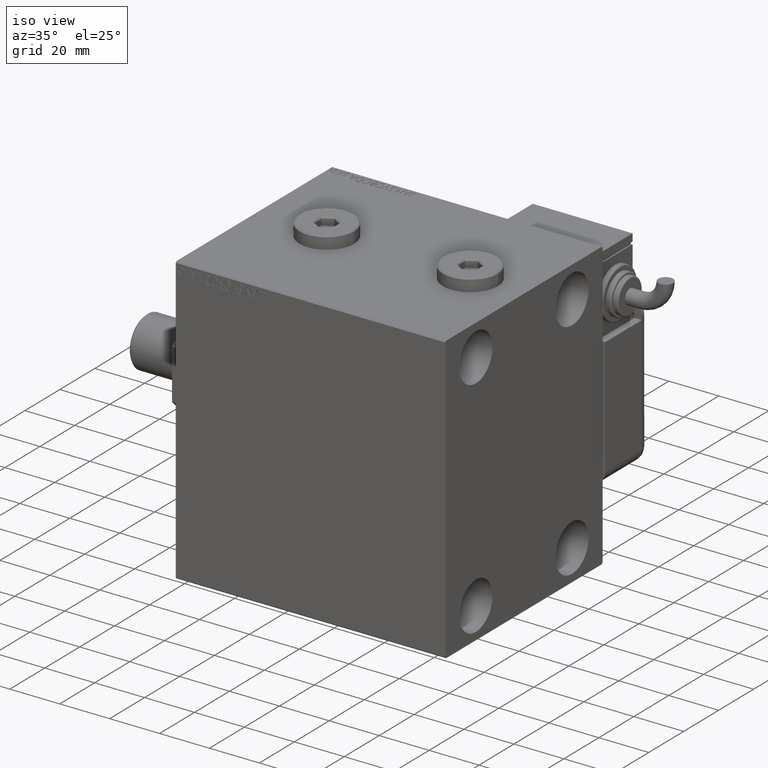
[diagram: clean part render]
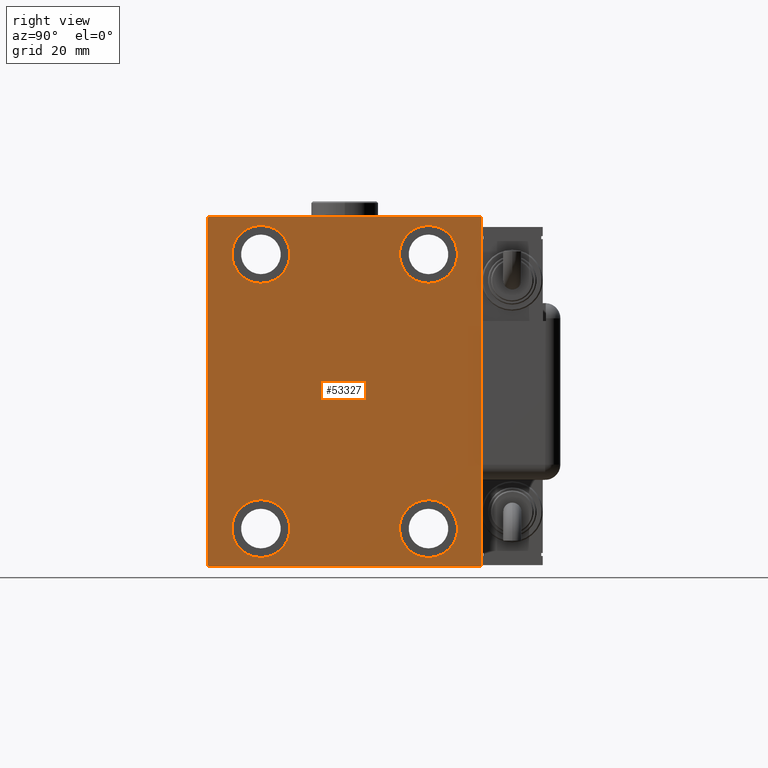
[diagram: tour spotlight — one face highlighted and labeled with its STEP entity id]
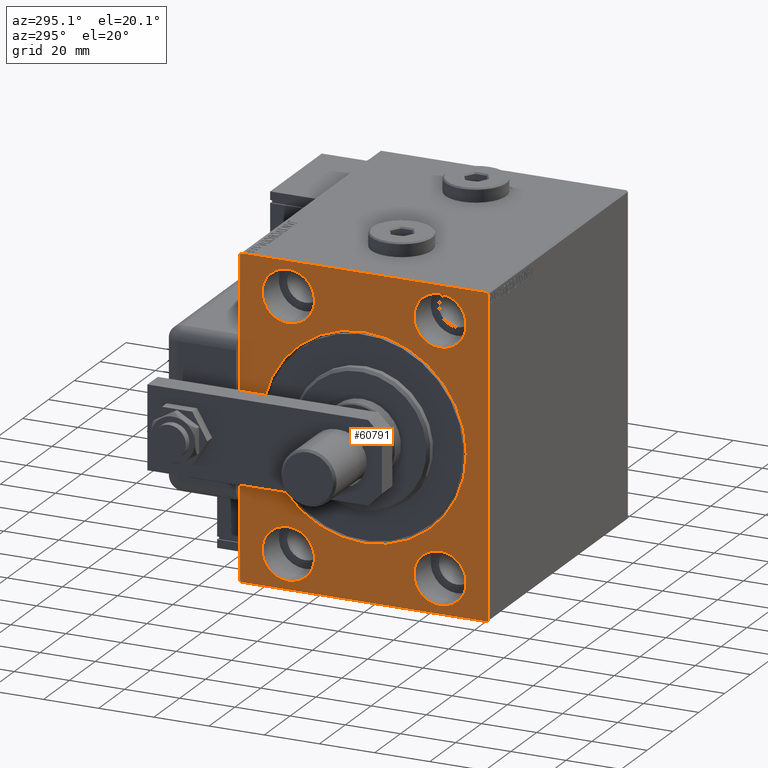
[diagram: tour spotlight — one face highlighted and labeled with its STEP entity id]
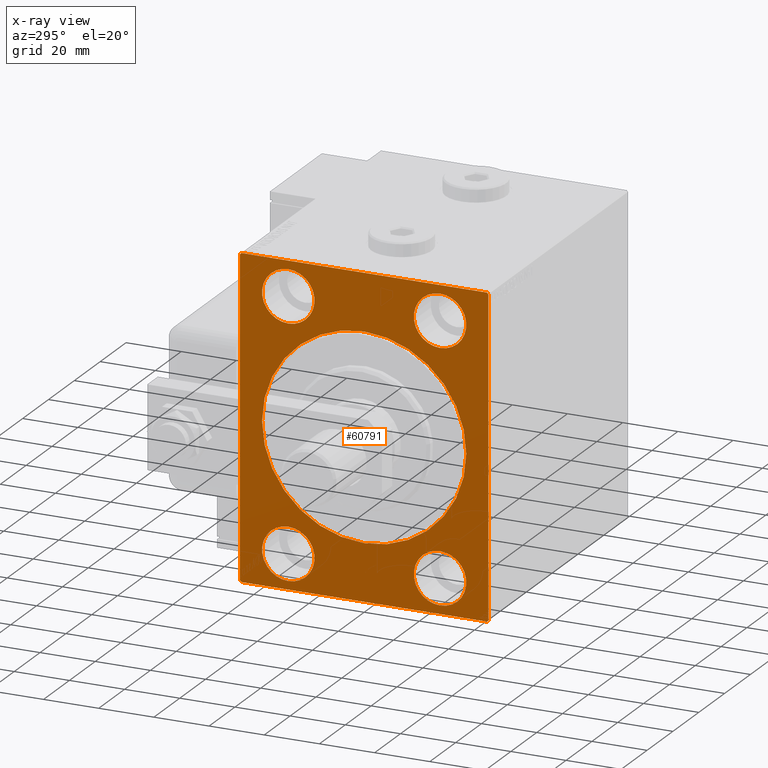
[diagram: x-ray of the same camera — body ghosted, this tour face saturated]
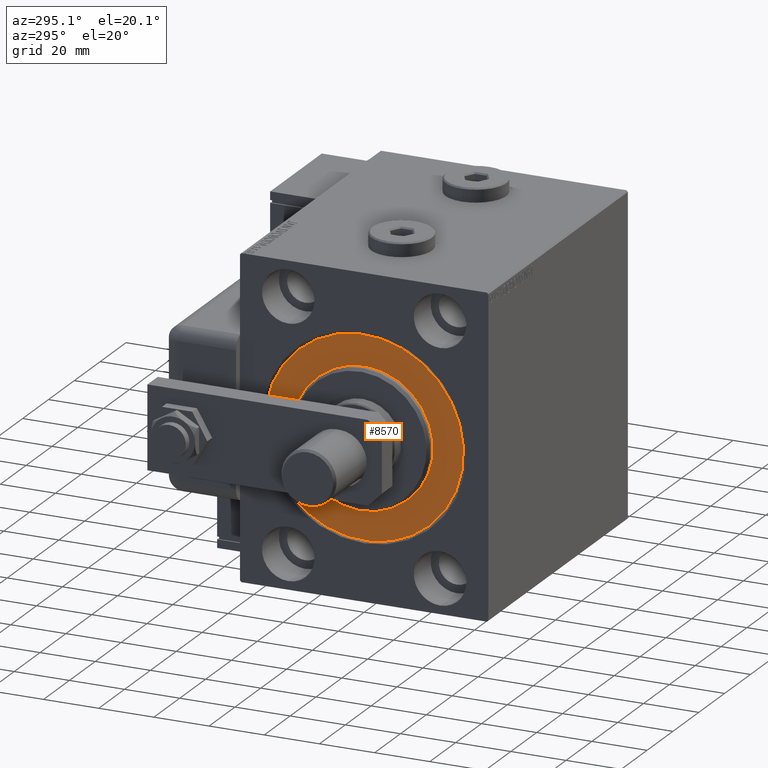
[diagram: tour spotlight — one face highlighted and labeled with its STEP entity id]
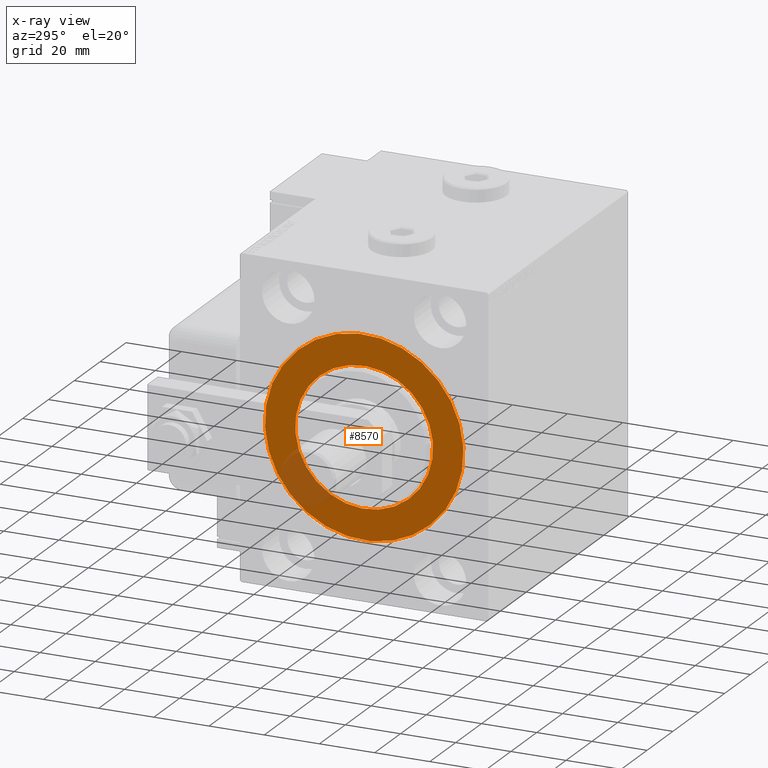
[diagram: x-ray of the same camera — body ghosted, this tour face saturated]
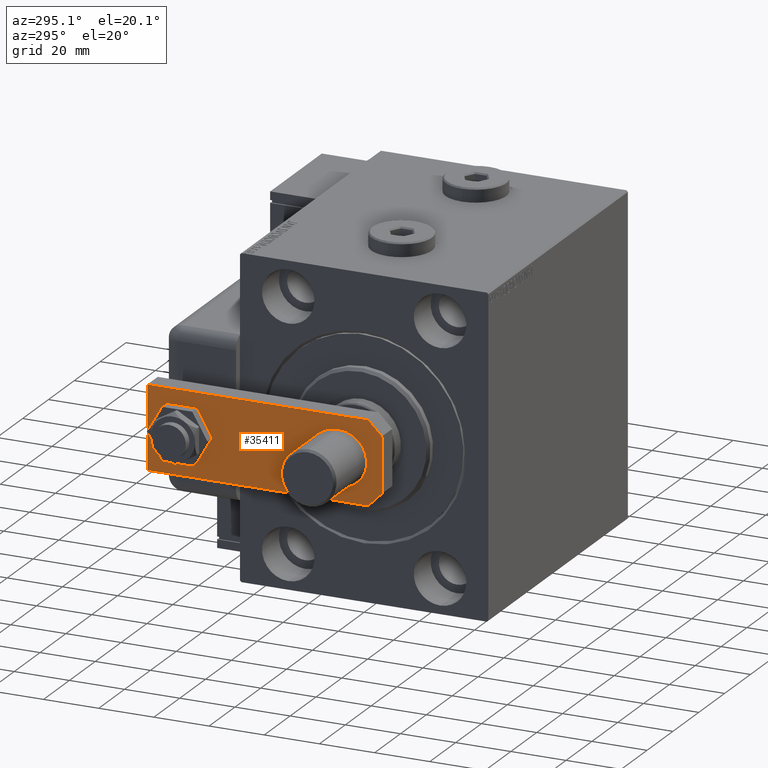
[diagram: tour spotlight — one face highlighted and labeled with its STEP entity id]
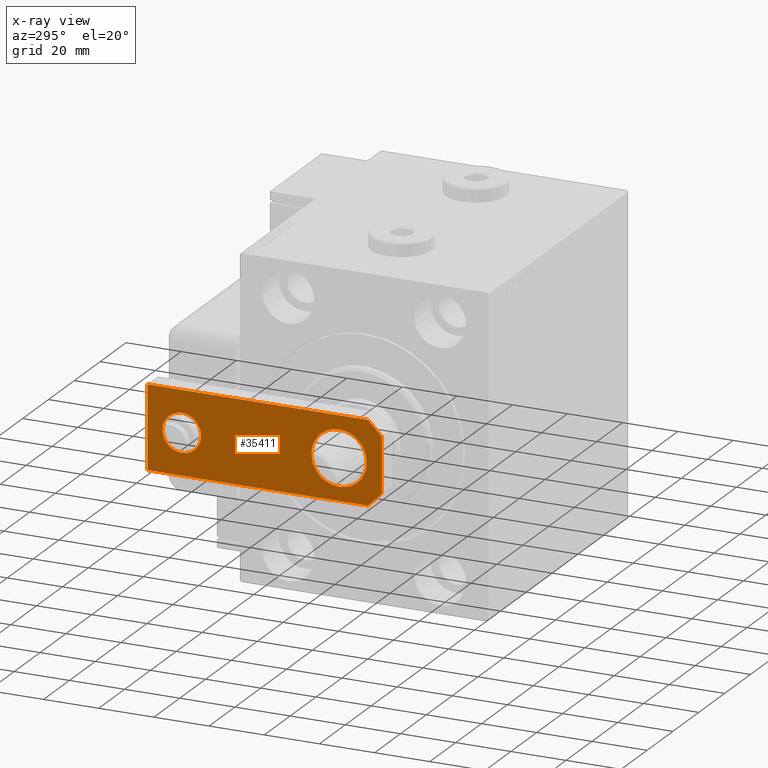
[diagram: x-ray of the same camera — body ghosted, this tour face saturated]
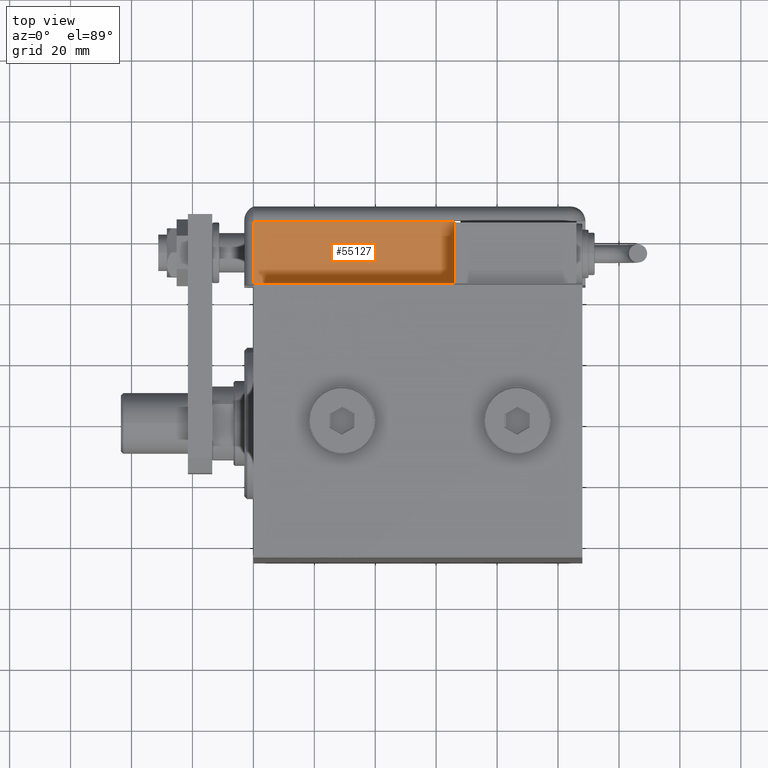
[diagram: tour spotlight — one face highlighted and labeled with its STEP entity id]
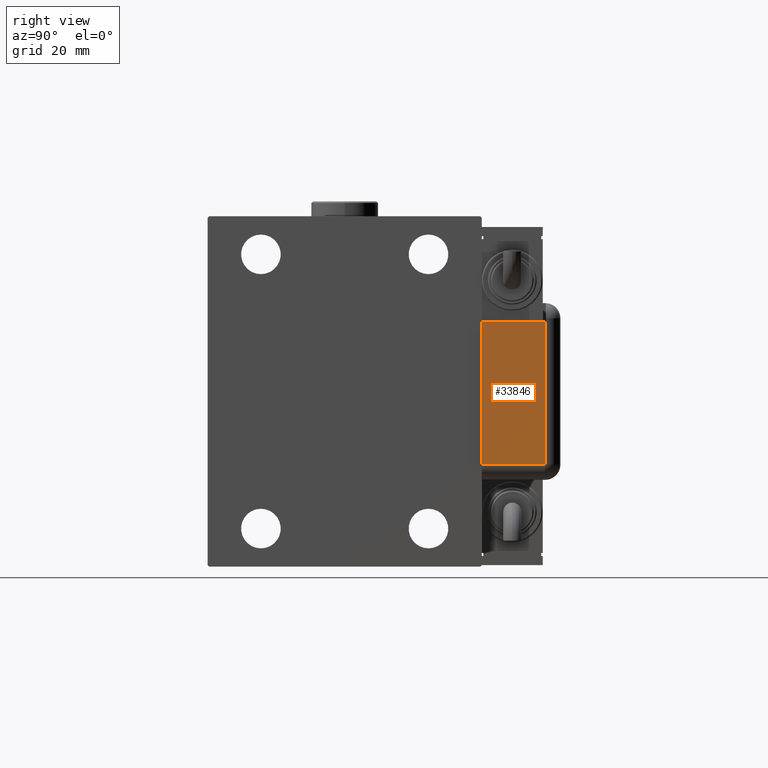
[diagram: tour spotlight — one face highlighted and labeled with its STEP entity id]
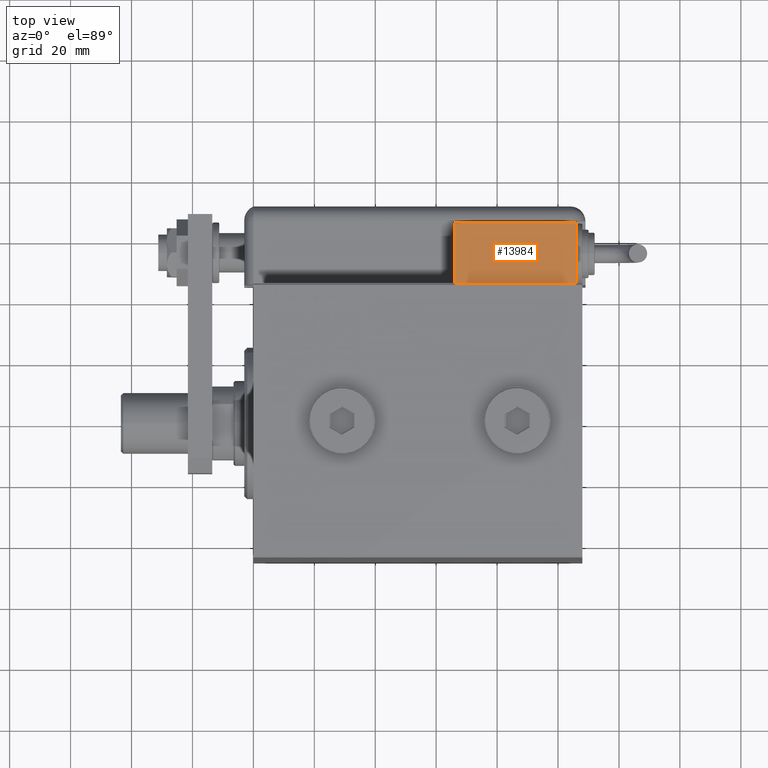
[diagram: tour spotlight — one face highlighted and labeled with its STEP entity id]
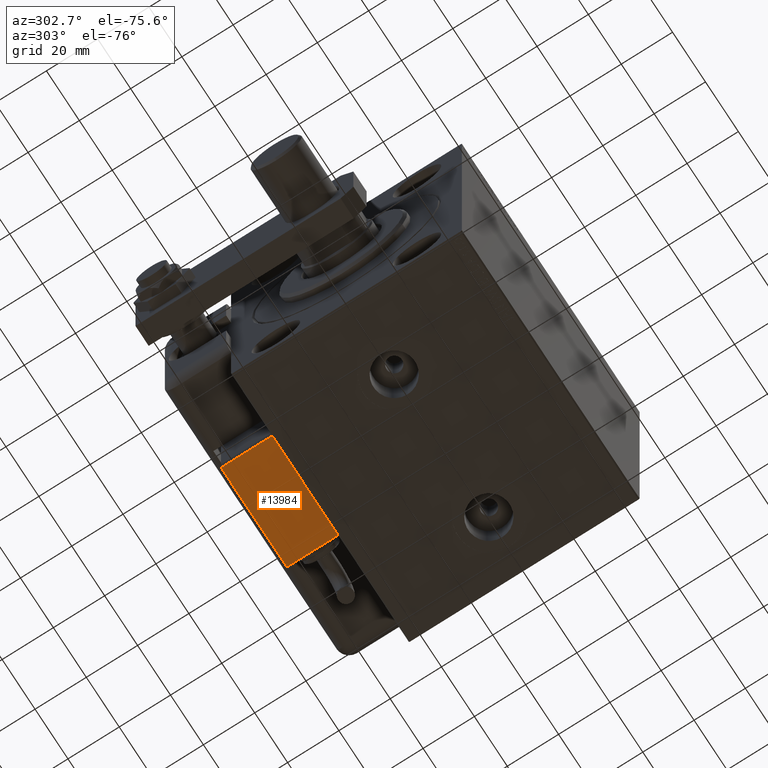
[diagram: tour spotlight — one face highlighted and labeled with its STEP entity id]
A machine part: a face-by-face anatomy tour. The part has 1317 B-rep faces; the first image is the clean iso view, then the 8 largest visible faces are spotlighted one at a time (largest first), each with its STEP entity span.

Face 1 — right view, entity #53327. In plain terms, the highlighted planar face has unit normal (1, 0, 0).
Definition (entity closure, byte-faithful):
#275 = VERTEX_POINT ( 'NONE', #26012 ) ;
#323 = CIRCLE ( 'NONE', #27135, 9.500000000000001776 ) ;
#413 = EDGE_CURVE ( 'NONE', #275, #40038, #42336, .T. ) ;
#530 = VERTEX_POINT ( 'NONE', #21273 ) ;
#584 = VERTEX_POINT ( 'NONE', #45841 ) ;
#848 = DIRECTION ( 'NONE',  ( 0.000000000000000000, 0.000000000000000000, -1.000000000000000000 ) ) ;
#1131 = DIRECTION ( 'NONE',  ( -1.000000000000000000, -0.000000000000000000, -0.000000000000000000 ) ) ;
#1400 = EDGE_CURVE ( 'NONE', #5966, #45163, #8564, .T. ) ;
#1457 = ORIENTED_EDGE ( 'NONE', *, *, #60066, .T. ) ;
#2120 = DIRECTION ( 'NONE',  ( 0.000000000000000000, 0.000000000000000000, 1.000000000000000000 ) ) ;
#2730 = ORIENTED_EDGE ( 'NONE', *, *, #1400, .T. ) ;
#2903 = DIRECTION ( 'NONE',  ( 0.000000000000000000, 0.000000000000000000, 1.000000000000000000 ) ) ;
#3812 = ORIENTED_EDGE ( 'NONE', *, *, #41590, .T. ) ;
#3994 = VECTOR ( 'NONE', #44060, 1000.000000000000000 ) ;
#4144 = CARTESIAN_POINT ( 'NONE',  ( 108.0000000000000000, -51.00000000000000000, 51.00000000000000000 ) ) ;
#4304 = CARTESIAN_POINT ( 'NONE',  ( 108.0000000000000000, -45.00000000000000000, 56.99999999999999289 ) ) ;
#4646 = VERTEX_POINT ( 'NONE', #54716 ) ;
#5336 = ORIENTED_EDGE ( 'NONE', *, *, #53562, .T. ) ;
#5700 = EDGE_CURVE ( 'NONE', #45163, #5966, #41405, .T. ) ;
#5852 = FACE_OUTER_BOUND ( 'NONE', #51257, .T. ) ;
#5966 = VERTEX_POINT ( 'NONE', #25986 ) ;
#6130 = ORIENTED_EDGE ( 'NONE', *, *, #19647, .T. ) ;
#6154 = VECTOR ( 'NONE', #848, 1000.000000000000000 ) ;
#6540 = DIRECTION ( 'NONE',  ( -0.000000000000000000, -0.7071067811865474617, 0.7071067811865474617 ) ) ;
#7995 = VECTOR ( 'NONE', #6540, 1000.000000000000114 ) ;
#8564 = CIRCLE ( 'NONE', #48347, 9.500000000000001776 ) ;
#9291 = EDGE_CURVE ( 'NONE', #40038, #275, #40561, .T. ) ;
#10167 = VERTEX_POINT ( 'NONE', #14671 ) ;
#10281 = CARTESIAN_POINT ( 'NONE',  ( 108.0000000000000000, 27.50000000000001066, 54.50000000000000711 ) ) ;
#10830 = FACE_BOUND ( 'NONE', #47980, .T. ) ;
#10977 = VECTOR ( 'NONE', #53355, 1000.000000000000000 ) ;
#11144 = CARTESIAN_POINT ( 'NONE',  ( 108.0000000000000000, 27.49999999999998934, -35.49999999999998579 ) ) ;
#11342 = ORIENTED_EDGE ( 'NONE', *, *, #52702, .T. ) ;
#11369 = DIRECTION ( 'NONE',  ( -0.000000000000000000, 0.7071067811865474617, 0.7071067811865474617 ) ) ;
#11445 = DIRECTION ( 'NONE',  ( -1.000000000000000000, -0.000000000000000000, -0.000000000000000000 ) ) ;
#11593 = AXIS2_PLACEMENT_3D ( 'NONE', #16130, #11445, #2120 ) ;
#11740 = CARTESIAN_POINT ( 'NONE',  ( 108.0000000000000000, 0.000000000000000000, 0.000000000000000000 ) ) ;
#11924 = ORIENTED_EDGE ( 'NONE', *, *, #5700, .T. ) ;
#13656 = LINE ( 'NONE', #32629, #22664 ) ;
#13722 = AXIS2_PLACEMENT_3D ( 'NONE', #43762, #1131, #20106 ) ;
#14030 = CARTESIAN_POINT ( 'NONE',  ( 108.0000000000000000, -27.49999999999998934, 35.50000000000000711 ) ) ;
#14155 = CARTESIAN_POINT ( 'NONE',  ( 108.0000000000000000, -27.50000000000000000, -44.99999999999998579 ) ) ;
#14389 = EDGE_CURVE ( 'NONE', #10167, #50685, #15388, .T. ) ;
#14516 = VERTEX_POINT ( 'NONE', #59243 ) ;
#14671 = CARTESIAN_POINT ( 'NONE',  ( 108.0000000000000000, 44.50000000000002842, 57.50000000000000711 ) ) ;
#15388 = LINE ( 'NONE', #39635, #10977 ) ;
#16130 = CARTESIAN_POINT ( 'NONE',  ( 108.0000000000000000, 27.49999999999998934, -44.99999999999998579 ) ) ;
#17079 = CIRCLE ( 'NONE', #52848, 9.500000000000001776 ) ;
#18291 = DIRECTION ( 'NONE',  ( -1.000000000000000000, -0.000000000000000000, -0.000000000000000000 ) ) ;
#18451 = DIRECTION ( 'NONE',  ( 0.000000000000000000, -0.7071067811865474617, -0.7071067811865474617 ) ) ;
#18664 = ORIENTED_EDGE ( 'NONE', *, *, #413, .T. ) ;
#19647 = EDGE_CURVE ( 'NONE', #56119, #584, #13656, .T. ) ;
#20106 = DIRECTION ( 'NONE',  ( 0.000000000000000000, 0.000000000000000000, 1.000000000000000000 ) ) ;
#20695 = CARTESIAN_POINT ( 'NONE',  ( 108.0000000000000000, 45.00000000000001421, -57.50000000000000711 ) ) ;
#21273 = CARTESIAN_POINT ( 'NONE',  ( 108.0000000000000000, 45.00000000000001421, -57.00000000000003553 ) ) ;
#21600 = CARTESIAN_POINT ( 'NONE',  ( 108.0000000000000000, -27.49999999999998934, 45.00000000000000711 ) ) ;
#22560 = EDGE_LOOP ( 'NONE', ( #57351, #57357 ) ) ;
#22664 = VECTOR ( 'NONE', #53806, 1000.000000000000114 ) ;
#22889 = EDGE_CURVE ( 'NONE', #50685, #58955, #46781, .T. ) ;
#23052 = DIRECTION ( 'NONE',  ( -1.000000000000000000, -0.000000000000000000, -0.000000000000000000 ) ) ;
#23563 = DIRECTION ( 'NONE',  ( 0.000000000000000000, 0.000000000000000000, 1.000000000000000000 ) ) ;
#23564 = LINE ( 'NONE', #24804, #6154 ) ;
#24434 = LINE ( 'NONE', #20695, #3994 ) ;
#24804 = CARTESIAN_POINT ( 'NONE',  ( 108.0000000000000000, -45.00000000000000000, 57.49999999999999289 ) ) ;
#24814 = VECTOR ( 'NONE', #18451, 1000.000000000000114 ) ;
#25179 = EDGE_LOOP ( 'NONE', ( #2730, #11924 ) ) ;
#25435 = FACE_BOUND ( 'NONE', #25179, .T. ) ;
#25986 = CARTESIAN_POINT ( 'NONE',  ( 108.0000000000000000, 27.49999999999998934, -54.49999999999998579 ) ) ;
#26012 = CARTESIAN_POINT ( 'NONE',  ( 108.0000000000000000, -27.50000000000000000, -35.49999999999998579 ) ) ;
#27135 = AXIS2_PLACEMENT_3D ( 'NONE', #21600, #23052, #39992 ) ;
#27308 = DIRECTION ( 'NONE',  ( 0.000000000000000000, 1.000000000000000000, 0.000000000000000000 ) ) ;
#27844 = CIRCLE ( 'NONE', #45756, 9.500000000000001776 ) ;
#28431 = AXIS2_PLACEMENT_3D ( 'NONE', #14155, #39028, #53058 ) ;
#29794 = CARTESIAN_POINT ( 'NONE',  ( 108.0000000000000000, -45.00000000000000000, -57.00000000000003553 ) ) ;
#29819 = CIRCLE ( 'NONE', #58679, 9.500000000000001776 ) ;
#29941 = VECTOR ( 'NONE', #11369, 1000.000000000000114 ) ;
#30179 = DIRECTION ( 'NONE',  ( 0.000000000000000000, 0.000000000000000000, 1.000000000000000000 ) ) ;
#30189 = CARTESIAN_POINT ( 'NONE',  ( 108.0000000000000000, 51.00000000000001421, 51.00000000000001421 ) ) ;
#30950 = EDGE_CURVE ( 'NONE', #58955, #56119, #23564, .T. ) ;
#31718 = EDGE_CURVE ( 'NONE', #34750, #42005, #17079, .T. ) ;
#31770 = ORIENTED_EDGE ( 'NONE', *, *, #57639, .T. ) ;
#31945 = ORIENTED_EDGE ( 'NONE', *, *, #22889, .T. ) ;
#32300 = DIRECTION ( 'NONE',  ( -1.000000000000000000, -0.000000000000000000, -0.000000000000000000 ) ) ;
#32629 = CARTESIAN_POINT ( 'NONE',  ( 108.0000000000000000, -51.00000000000001421, -51.00000000000001421 ) ) ;
#33266 = ORIENTED_EDGE ( 'NONE', *, *, #14389, .T. ) ;
#33842 = CARTESIAN_POINT ( 'NONE',  ( 108.0000000000000000, -27.50000000000000000, -54.49999999999998579 ) ) ;
#34098 = LINE ( 'NONE', #38758, #29941 ) ;
#34650 = EDGE_CURVE ( 'NONE', #42005, #34750, #323, .T. ) ;
#34750 = VERTEX_POINT ( 'NONE', #14030 ) ;
#36950 = CARTESIAN_POINT ( 'NONE',  ( 108.0000000000000000, -45.00000000000000000, -57.50000000000000711 ) ) ;
#38758 = CARTESIAN_POINT ( 'NONE',  ( 108.0000000000000000, 51.00000000000001421, -51.00000000000001421 ) ) ;
#38833 = FACE_BOUND ( 'NONE', #22560, .T. ) ;
#39028 = DIRECTION ( 'NONE',  ( -1.000000000000000000, -0.000000000000000000, -0.000000000000000000 ) ) ;
#39145 = FACE_BOUND ( 'NONE', #51339, .T. ) ;
#39513 = DIRECTION ( 'NONE',  ( -1.000000000000000000, -0.000000000000000000, -0.000000000000000000 ) ) ;
#39635 = CARTESIAN_POINT ( 'NONE',  ( 108.0000000000000000, 45.00000000000000000, 57.50000000000000711 ) ) ;
#39841 = LINE ( 'NONE', #30189, #7995 ) ;
#39992 = DIRECTION ( 'NONE',  ( 0.000000000000000000, 0.000000000000000000, 1.000000000000000000 ) ) ;
#40038 = VERTEX_POINT ( 'NONE', #33842 ) ;
#40561 = CIRCLE ( 'NONE', #13722, 9.500000000000001776 ) ;
#40875 = DIRECTION ( 'NONE',  ( -1.000000000000000000, -0.000000000000000000, -0.000000000000000000 ) ) ;
#41405 = CIRCLE ( 'NONE', #11593, 9.500000000000001776 ) ;
#41590 = EDGE_CURVE ( 'NONE', #584, #14516, #45993, .T. ) ;
#42005 = VERTEX_POINT ( 'NONE', #60247 ) ;
#42336 = CIRCLE ( 'NONE', #28431, 9.500000000000001776 ) ;
#42469 = ORIENTED_EDGE ( 'NONE', *, *, #53070, .T. ) ;
#43205 = VECTOR ( 'NONE', #27308, 1000.000000000000000 ) ;
#43704 = CARTESIAN_POINT ( 'NONE',  ( 108.0000000000000000, 45.00000000000000000, 57.00000000000000711 ) ) ;
#43762 = CARTESIAN_POINT ( 'NONE',  ( 108.0000000000000000, -27.50000000000000000, -44.99999999999998579 ) ) ;
#44060 = DIRECTION ( 'NONE',  ( 0.000000000000000000, -1.206764157201257045E-16, 1.000000000000000000 ) ) ;
#44429 = DIRECTION ( 'NONE',  ( 0.000000000000000000, 0.000000000000000000, -1.000000000000000000 ) ) ;
#44500 = CARTESIAN_POINT ( 'NONE',  ( 108.0000000000000000, 27.50000000000001066, 45.00000000000000711 ) ) ;
#44906 = VERTEX_POINT ( 'NONE', #10281 ) ;
#45163 = VERTEX_POINT ( 'NONE', #11144 ) ;
#45756 = AXIS2_PLACEMENT_3D ( 'NONE', #44500, #39513, #30179 ) ;
#45841 = CARTESIAN_POINT ( 'NONE',  ( 108.0000000000000000, -44.50000000000002842, -57.50000000000000711 ) ) ;
#45993 = LINE ( 'NONE', #36950, #43205 ) ;
#46621 = CARTESIAN_POINT ( 'NONE',  ( 108.0000000000000000, -27.49999999999998934, 45.00000000000000711 ) ) ;
#46781 = LINE ( 'NONE', #4144, #24814 ) ;
#46933 = DIRECTION ( 'NONE',  ( 0.000000000000000000, 0.000000000000000000, 1.000000000000000000 ) ) ;
#47980 = EDGE_LOOP ( 'NONE', ( #60154, #18664 ) ) ;
#48347 = AXIS2_PLACEMENT_3D ( 'NONE', #56435, #40875, #2903 ) ;
#48812 = PLANE ( 'NONE',  #52747 ) ;
#49981 = CARTESIAN_POINT ( 'NONE',  ( 108.0000000000000000, -44.49999999999997158, 57.49999999999999289 ) ) ;
#50685 = VERTEX_POINT ( 'NONE', #49981 ) ;
#50985 = VERTEX_POINT ( 'NONE', #43704 ) ;
#51257 = EDGE_LOOP ( 'NONE', ( #33266, #31945, #61287, #6130, #3812, #1457, #5336, #31770 ) ) ;
#51339 = EDGE_LOOP ( 'NONE', ( #11342, #42469 ) ) ;
#52518 = CARTESIAN_POINT ( 'NONE',  ( 108.0000000000000000, 27.50000000000001066, 45.00000000000000711 ) ) ;
#52702 = EDGE_CURVE ( 'NONE', #4646, #44906, #29819, .T. ) ;
#52747 = AXIS2_PLACEMENT_3D ( 'NONE', #11740, #53801, #44429 ) ;
#52848 = AXIS2_PLACEMENT_3D ( 'NONE', #46621, #32300, #46933 ) ;
#53058 = DIRECTION ( 'NONE',  ( 0.000000000000000000, 0.000000000000000000, 1.000000000000000000 ) ) ;
#53070 = EDGE_CURVE ( 'NONE', #44906, #4646, #27844, .T. ) ;
#53327 = ADVANCED_FACE ( 'NONE', ( #25435, #38833, #39145, #10830, #5852 ), #48812, .T. ) ;
#53355 = DIRECTION ( 'NONE',  ( 0.000000000000000000, -1.000000000000000000, -1.541976423090495387E-16 ) ) ;
#53562 = EDGE_CURVE ( 'NONE', #530, #50985, #24434, .T. ) ;
#53801 = DIRECTION ( 'NONE',  ( 1.000000000000000000, 0.000000000000000000, 0.000000000000000000 ) ) ;
#53806 = DIRECTION ( 'NONE',  ( -0.000000000000000000, 0.7071067811865474617, -0.7071067811865474617 ) ) ;
#54716 = CARTESIAN_POINT ( 'NONE',  ( 108.0000000000000000, 27.50000000000001066, 35.50000000000000711 ) ) ;
#56119 = VERTEX_POINT ( 'NONE', #29794 ) ;
#56435 = CARTESIAN_POINT ( 'NONE',  ( 108.0000000000000000, 27.49999999999998934, -44.99999999999998579 ) ) ;
#57351 = ORIENTED_EDGE ( 'NONE', *, *, #31718, .T. ) ;
#57357 = ORIENTED_EDGE ( 'NONE', *, *, #34650, .T. ) ;
#57639 = EDGE_CURVE ( 'NONE', #50985, #10167, #39841, .T. ) ;
#58679 = AXIS2_PLACEMENT_3D ( 'NONE', #52518, #18291, #23563 ) ;
#58955 = VERTEX_POINT ( 'NONE', #4304 ) ;
#59243 = CARTESIAN_POINT ( 'NONE',  ( 108.0000000000000000, 44.50000000000001421, -57.50000000000000711 ) ) ;
#60066 = EDGE_CURVE ( 'NONE', #14516, #530, #34098, .T. ) ;
#60154 = ORIENTED_EDGE ( 'NONE', *, *, #9291, .T. ) ;
#60247 = CARTESIAN_POINT ( 'NONE',  ( 108.0000000000000000, -27.49999999999998934, 54.50000000000000711 ) ) ;
#61287 = ORIENTED_EDGE ( 'NONE', *, *, #30950, .T. ) ;

Face 2 — auxiliary view, entity #60791. An x-ray twin of the same camera follows (body ghosted, this face saturated) — the face is partly hidden behind the body. In plain terms, the highlighted planar face has unit normal (1, 0, 0).
Definition (entity closure, byte-faithful):
#1008 = VECTOR ( 'NONE', #37058, 1000.000000000000000 ) ;
#1189 = DIRECTION ( 'NONE',  ( -0.000000000000000000, -0.7071067811865474617, 0.7071067811865474617 ) ) ;
#1598 = DIRECTION ( 'NONE',  ( 0.000000000000000000, -1.206764157201257045E-16, 1.000000000000000000 ) ) ;
#2119 = CIRCLE ( 'NONE', #56823, 9.500000000000001776 ) ;
#3154 = CARTESIAN_POINT ( 'NONE',  ( 0.000000000000000000, 27.49999999999998934, -35.49999999999998579 ) ) ;
#3155 = EDGE_CURVE ( 'NONE', #8291, #38094, #40706, .T. ) ;
#3567 = EDGE_CURVE ( 'NONE', #33907, #7918, #49463, .T. ) ;
#3576 = EDGE_CURVE ( 'NONE', #21480, #38094, #52972, .T. ) ;
#4360 = CIRCLE ( 'NONE', #18260, 37.00000000000003553 ) ;
#5014 = VECTOR ( 'NONE', #18421, 1000.000000000000000 ) ;
#5233 = LINE ( 'NONE', #39442, #39649 ) ;
#5578 = VERTEX_POINT ( 'NONE', #24223 ) ;
#7044 = CARTESIAN_POINT ( 'NONE',  ( 0.000000000000000000, -27.49999999999998934, 45.00000000000000711 ) ) ;
#7187 = CARTESIAN_POINT ( 'NONE',  ( 0.000000000000000000, 27.49999999999998934, -44.99999999999998579 ) ) ;
#7918 = VERTEX_POINT ( 'NONE', #32774 ) ;
#8291 = VERTEX_POINT ( 'NONE', #54109 ) ;
#8541 = DIRECTION ( 'NONE',  ( 0.000000000000000000, 1.000000000000000000, 0.000000000000000000 ) ) ;
#8844 = VECTOR ( 'NONE', #33765, 1000.000000000000114 ) ;
#9692 = LINE ( 'NONE', #37701, #5014 ) ;
#9873 = FACE_BOUND ( 'NONE', #47886, .T. ) ;
#10013 = DIRECTION ( 'NONE',  ( -1.000000000000000000, 0.000000000000000000, 0.000000000000000000 ) ) ;
#10180 = FACE_BOUND ( 'NONE', #22912, .T. ) ;
#10319 = CARTESIAN_POINT ( 'NONE',  ( 0.000000000000000000, 45.00000000000001421, -57.50000000000000711 ) ) ;
#10376 = CARTESIAN_POINT ( 'NONE',  ( 0.000000000000000000, -27.49999999999998934, 45.00000000000000711 ) ) ;
#11443 = EDGE_CURVE ( 'NONE', #59419, #60370, #15837, .T. ) ;
#11717 = DIRECTION ( 'NONE',  ( 0.000000000000000000, 0.000000000000000000, -1.000000000000000000 ) ) ;
#11782 = CARTESIAN_POINT ( 'NONE',  ( 0.000000000000000000, 27.50000000000001066, 45.00000000000000711 ) ) ;
#12092 = CARTESIAN_POINT ( 'NONE',  ( 0.000000000000000000, 0.000000000000000000, 0.000000000000000000 ) ) ;
#12188 = CARTESIAN_POINT ( 'NONE',  ( 0.000000000000000000, 4.531193156845210737E-15, -37.00000000000003553 ) ) ;
#12955 = CARTESIAN_POINT ( 'NONE',  ( 0.000000000000000000, 0.000000000000000000, 0.000000000000000000 ) ) ;
#13120 = LINE ( 'NONE', #18093, #1008 ) ;
#13372 = DIRECTION ( 'NONE',  ( -1.000000000000000000, 0.000000000000000000, 0.000000000000000000 ) ) ;
#13588 = CARTESIAN_POINT ( 'NONE',  ( 0.000000000000000000, -45.00000000000000000, -57.00000000000003553 ) ) ;
#13796 = CARTESIAN_POINT ( 'NONE',  ( 0.000000000000000000, 44.50000000000001421, -57.50000000000000711 ) ) ;
#13852 = VERTEX_POINT ( 'NONE', #45744 ) ;
#13865 = CIRCLE ( 'NONE', #30741, 9.500000000000001776 ) ;
#13990 = EDGE_CURVE ( 'NONE', #26374, #46876, #18885, .T. ) ;
#14536 = EDGE_CURVE ( 'NONE', #5578, #28853, #9692, .T. ) ;
#14859 = FACE_BOUND ( 'NONE', #20430, .T. ) ;
#15837 = CIRCLE ( 'NONE', #31711, 37.00000000000003553 ) ;
#16844 = CARTESIAN_POINT ( 'NONE',  ( 0.000000000000000000, -27.50000000000000000, -44.99999999999998579 ) ) ;
#16868 = CARTESIAN_POINT ( 'NONE',  ( 0.000000000000000000, -27.49999999999998934, 35.50000000000000711 ) ) ;
#17061 = DIRECTION ( 'NONE',  ( -0.000000000000000000, 0.7071067811865474617, -0.7071067811865474617 ) ) ;
#17135 = DIRECTION ( 'NONE',  ( -1.000000000000000000, 0.000000000000000000, 0.000000000000000000 ) ) ;
#18093 = CARTESIAN_POINT ( 'NONE',  ( 0.000000000000000000, 45.00000000000000000, 57.50000000000000711 ) ) ;
#18260 = AXIS2_PLACEMENT_3D ( 'NONE', #12955, #60259, #55915 ) ;
#18421 = DIRECTION ( 'NONE',  ( 0.000000000000000000, 0.000000000000000000, -1.000000000000000000 ) ) ;
#18695 = CIRCLE ( 'NONE', #41545, 9.500000000000001776 ) ;
#18885 = CIRCLE ( 'NONE', #28838, 9.500000000000001776 ) ;
#20430 = EDGE_LOOP ( 'NONE', ( #57278, #21706 ) ) ;
#21225 = EDGE_CURVE ( 'NONE', #57468, #40115, #23786, .T. ) ;
#21480 = VERTEX_POINT ( 'NONE', #42885 ) ;
#21706 = ORIENTED_EDGE ( 'NONE', *, *, #13990, .F. ) ;
#21780 = VECTOR ( 'NONE', #51519, 1000.000000000000114 ) ;
#21790 = EDGE_CURVE ( 'NONE', #21480, #40684, #32522, .T. ) ;
#22087 = EDGE_LOOP ( 'NONE', ( #44472, #36550, #40995, #61604, #38270, #23531, #33053, #47015 ) ) ;
#22912 = EDGE_LOOP ( 'NONE', ( #24179, #48993 ) ) ;
#22954 = FACE_OUTER_BOUND ( 'NONE', #22087, .T. ) ;
#23187 = CARTESIAN_POINT ( 'NONE',  ( 0.000000000000000000, 45.00000000000001421, -57.00000000000003553 ) ) ;
#23394 = ORIENTED_EDGE ( 'NONE', *, *, #51255, .F. ) ;
#23531 = ORIENTED_EDGE ( 'NONE', *, *, #21790, .T. ) ;
#23786 = CIRCLE ( 'NONE', #28714, 9.500000000000001776 ) ;
#24179 = ORIENTED_EDGE ( 'NONE', *, *, #48493, .F. ) ;
#24223 = CARTESIAN_POINT ( 'NONE',  ( 0.000000000000000000, -45.00000000000000000, 56.99999999999999289 ) ) ;
#24531 = EDGE_CURVE ( 'NONE', #5578, #55131, #53087, .T. ) ;
#25158 = EDGE_CURVE ( 'NONE', #13852, #28853, #5233, .T. ) ;
#25399 = DIRECTION ( 'NONE',  ( 0.000000000000000000, 0.000000000000000000, 1.000000000000000000 ) ) ;
#25635 = VECTOR ( 'NONE', #8541, 1000.000000000000000 ) ;
#25941 = CARTESIAN_POINT ( 'NONE',  ( 0.000000000000000000, 0.000000000000000000, 37.00000000000003553 ) ) ;
#26009 = DIRECTION ( 'NONE',  ( -1.000000000000000000, 0.000000000000000000, 0.000000000000000000 ) ) ;
#26328 = EDGE_CURVE ( 'NONE', #8291, #55131, #13120, .T. ) ;
#26374 = VERTEX_POINT ( 'NONE', #33316 ) ;
#26998 = AXIS2_PLACEMENT_3D ( 'NONE', #37257, #29469, #11717 ) ;
#27057 = DIRECTION ( 'NONE',  ( 0.000000000000000000, 0.000000000000000000, 1.000000000000000000 ) ) ;
#27223 = CARTESIAN_POINT ( 'NONE',  ( 0.000000000000000000, -45.00000000000000000, -57.50000000000000711 ) ) ;
#27536 = VECTOR ( 'NONE', #17061, 1000.000000000000114 ) ;
#28251 = CARTESIAN_POINT ( 'NONE',  ( 0.000000000000000000, -27.49999999999998934, 54.50000000000000711 ) ) ;
#28714 = AXIS2_PLACEMENT_3D ( 'NONE', #10376, #34949, #30286 ) ;
#28838 = AXIS2_PLACEMENT_3D ( 'NONE', #56651, #13372, #27057 ) ;
#28853 = VERTEX_POINT ( 'NONE', #13588 ) ;
#28864 = FACE_BOUND ( 'NONE', #45912, .T. ) ;
#29469 = DIRECTION ( 'NONE',  ( 1.000000000000000000, 0.000000000000000000, 0.000000000000000000 ) ) ;
#30006 = CIRCLE ( 'NONE', #43914, 9.500000000000001776 ) ;
#30286 = DIRECTION ( 'NONE',  ( 0.000000000000000000, 0.000000000000000000, 1.000000000000000000 ) ) ;
#30379 = CARTESIAN_POINT ( 'NONE',  ( 0.000000000000000000, -27.50000000000000000, -44.99999999999998579 ) ) ;
#30741 = AXIS2_PLACEMENT_3D ( 'NONE', #7187, #17135, #45445 ) ;
#30821 = EDGE_CURVE ( 'NONE', #46876, #26374, #2119, .T. ) ;
#30973 = VERTEX_POINT ( 'NONE', #38189 ) ;
#31442 = EDGE_CURVE ( 'NONE', #42107, #30973, #30006, .T. ) ;
#31711 = AXIS2_PLACEMENT_3D ( 'NONE', #12092, #35729, #41333 ) ;
#32522 = LINE ( 'NONE', #23187, #21780 ) ;
#32643 = CARTESIAN_POINT ( 'NONE',  ( 0.000000000000000000, -44.49999999999997158, 57.49999999999999289 ) ) ;
#32774 = CARTESIAN_POINT ( 'NONE',  ( 0.000000000000000000, 27.49999999999998934, -54.49999999999998579 ) ) ;
#33053 = ORIENTED_EDGE ( 'NONE', *, *, #48501, .F. ) ;
#33316 = CARTESIAN_POINT ( 'NONE',  ( 0.000000000000000000, 27.50000000000001066, 35.50000000000000711 ) ) ;
#33542 = AXIS2_PLACEMENT_3D ( 'NONE', #47986, #10013, #43941 ) ;
#33765 = DIRECTION ( 'NONE',  ( -0.000000000000000000, 0.7071067811865474617, 0.7071067811865474617 ) ) ;
#33833 = FACE_BOUND ( 'NONE', #40799, .T. ) ;
#33907 = VERTEX_POINT ( 'NONE', #3154 ) ;
#34365 = CARTESIAN_POINT ( 'NONE',  ( 0.000000000000000000, -27.50000000000000000, -54.49999999999998579 ) ) ;
#34751 = ORIENTED_EDGE ( 'NONE', *, *, #3567, .F. ) ;
#34949 = DIRECTION ( 'NONE',  ( -1.000000000000000000, 0.000000000000000000, 0.000000000000000000 ) ) ;
#35729 = DIRECTION ( 'NONE',  ( 1.000000000000000000, 0.000000000000000000, 0.000000000000000000 ) ) ;
#36550 = ORIENTED_EDGE ( 'NONE', *, *, #24531, .T. ) ;
#36553 = LINE ( 'NONE', #27223, #25635 ) ;
#37058 = DIRECTION ( 'NONE',  ( 0.000000000000000000, -1.000000000000000000, -1.541976423090495387E-16 ) ) ;
#37257 = CARTESIAN_POINT ( 'NONE',  ( 0.000000000000000000, 0.000000000000000000, 0.000000000000000000 ) ) ;
#37701 = CARTESIAN_POINT ( 'NONE',  ( 0.000000000000000000, -45.00000000000000000, 57.49999999999999289 ) ) ;
#38094 = VERTEX_POINT ( 'NONE', #39255 ) ;
#38189 = CARTESIAN_POINT ( 'NONE',  ( 0.000000000000000000, -27.50000000000000000, -35.49999999999998579 ) ) ;
#38270 = ORIENTED_EDGE ( 'NONE', *, *, #3576, .F. ) ;
#39255 = CARTESIAN_POINT ( 'NONE',  ( 0.000000000000000000, 45.00000000000000000, 57.00000000000000711 ) ) ;
#39442 = CARTESIAN_POINT ( 'NONE',  ( 0.000000000000000000, -44.50000000000002842, -57.50000000000000711 ) ) ;
#39649 = VECTOR ( 'NONE', #1189, 1000.000000000000114 ) ;
#39809 = DIRECTION ( 'NONE',  ( 0.000000000000000000, 0.000000000000000000, 1.000000000000000000 ) ) ;
#40115 = VERTEX_POINT ( 'NONE', #28251 ) ;
#40337 = EDGE_CURVE ( 'NONE', #60370, #59419, #4360, .T. ) ;
#40684 = VERTEX_POINT ( 'NONE', #13796 ) ;
#40706 = LINE ( 'NONE', #59710, #27536 ) ;
#40799 = EDGE_LOOP ( 'NONE', ( #57370, #54587 ) ) ;
#40995 = ORIENTED_EDGE ( 'NONE', *, *, #26328, .F. ) ;
#41333 = DIRECTION ( 'NONE',  ( 0.000000000000000000, 0.000000000000000000, -1.000000000000000000 ) ) ;
#41545 = AXIS2_PLACEMENT_3D ( 'NONE', #7044, #26009, #59324 ) ;
#41678 = AXIS2_PLACEMENT_3D ( 'NONE', #30379, #59637, #25399 ) ;
#42107 = VERTEX_POINT ( 'NONE', #34365 ) ;
#42154 = ORIENTED_EDGE ( 'NONE', *, *, #40337, .T. ) ;
#42479 = VECTOR ( 'NONE', #1598, 1000.000000000000000 ) ;
#42885 = CARTESIAN_POINT ( 'NONE',  ( 0.000000000000000000, 45.00000000000001421, -57.00000000000003553 ) ) ;
#43739 = CARTESIAN_POINT ( 'NONE',  ( 0.000000000000000000, -45.00000000000000000, 56.99999999999999289 ) ) ;
#43914 = AXIS2_PLACEMENT_3D ( 'NONE', #16844, #54838, #50147 ) ;
#43941 = DIRECTION ( 'NONE',  ( 0.000000000000000000, 0.000000000000000000, 1.000000000000000000 ) ) ;
#44472 = ORIENTED_EDGE ( 'NONE', *, *, #14536, .F. ) ;
#44917 = CARTESIAN_POINT ( 'NONE',  ( 0.000000000000000000, 27.50000000000001066, 54.50000000000000711 ) ) ;
#45445 = DIRECTION ( 'NONE',  ( 0.000000000000000000, 0.000000000000000000, 1.000000000000000000 ) ) ;
#45744 = CARTESIAN_POINT ( 'NONE',  ( 0.000000000000000000, -44.50000000000002842, -57.50000000000000711 ) ) ;
#45912 = EDGE_LOOP ( 'NONE', ( #34751, #23394 ) ) ;
#46876 = VERTEX_POINT ( 'NONE', #44917 ) ;
#47015 = ORIENTED_EDGE ( 'NONE', *, *, #25158, .T. ) ;
#47886 = EDGE_LOOP ( 'NONE', ( #42154, #53744 ) ) ;
#47986 = CARTESIAN_POINT ( 'NONE',  ( 0.000000000000000000, 27.49999999999998934, -44.99999999999998579 ) ) ;
#48493 = EDGE_CURVE ( 'NONE', #40115, #57468, #18695, .T. ) ;
#48501 = EDGE_CURVE ( 'NONE', #13852, #40684, #36553, .T. ) ;
#48993 = ORIENTED_EDGE ( 'NONE', *, *, #21225, .F. ) ;
#49463 = CIRCLE ( 'NONE', #33542, 9.500000000000001776 ) ;
#50147 = DIRECTION ( 'NONE',  ( 0.000000000000000000, 0.000000000000000000, 1.000000000000000000 ) ) ;
#51255 = EDGE_CURVE ( 'NONE', #7918, #33907, #13865, .T. ) ;
#51414 = EDGE_CURVE ( 'NONE', #30973, #42107, #60561, .T. ) ;
#51519 = DIRECTION ( 'NONE',  ( 0.000000000000000000, -0.7071067811865474617, -0.7071067811865474617 ) ) ;
#52972 = LINE ( 'NONE', #10319, #42479 ) ;
#53087 = LINE ( 'NONE', #43739, #8844 ) ;
#53744 = ORIENTED_EDGE ( 'NONE', *, *, #11443, .T. ) ;
#54109 = CARTESIAN_POINT ( 'NONE',  ( 0.000000000000000000, 44.50000000000002842, 57.50000000000000711 ) ) ;
#54449 = DIRECTION ( 'NONE',  ( -1.000000000000000000, 0.000000000000000000, 0.000000000000000000 ) ) ;
#54587 = ORIENTED_EDGE ( 'NONE', *, *, #31442, .F. ) ;
#54838 = DIRECTION ( 'NONE',  ( -1.000000000000000000, 0.000000000000000000, 0.000000000000000000 ) ) ;
#55131 = VERTEX_POINT ( 'NONE', #32643 ) ;
#55915 = DIRECTION ( 'NONE',  ( 0.000000000000000000, 0.000000000000000000, -1.000000000000000000 ) ) ;
#56651 = CARTESIAN_POINT ( 'NONE',  ( 0.000000000000000000, 27.50000000000001066, 45.00000000000000711 ) ) ;
#56823 = AXIS2_PLACEMENT_3D ( 'NONE', #11782, #54449, #39809 ) ;
#57278 = ORIENTED_EDGE ( 'NONE', *, *, #30821, .F. ) ;
#57370 = ORIENTED_EDGE ( 'NONE', *, *, #51414, .F. ) ;
#57468 = VERTEX_POINT ( 'NONE', #16868 ) ;
#59324 = DIRECTION ( 'NONE',  ( 0.000000000000000000, 0.000000000000000000, 1.000000000000000000 ) ) ;
#59419 = VERTEX_POINT ( 'NONE', #12188 ) ;
#59637 = DIRECTION ( 'NONE',  ( -1.000000000000000000, 0.000000000000000000, 0.000000000000000000 ) ) ;
#59710 = CARTESIAN_POINT ( 'NONE',  ( 0.000000000000000000, 44.50000000000002842, 57.50000000000000711 ) ) ;
#60259 = DIRECTION ( 'NONE',  ( 1.000000000000000000, 0.000000000000000000, 0.000000000000000000 ) ) ;
#60370 = VERTEX_POINT ( 'NONE', #25941 ) ;
#60561 = CIRCLE ( 'NONE', #41678, 9.500000000000001776 ) ;
#60791 = ADVANCED_FACE ( 'NONE', ( #9873, #28864, #10180, #14859, #33833, #22954 ), #60943, .F. ) ;
#60943 = PLANE ( 'NONE',  #26998 ) ;
#61604 = ORIENTED_EDGE ( 'NONE', *, *, #3155, .T. ) ;

Face 3 — auxiliary view, entity #8570. An x-ray twin of the same camera follows (body ghosted, this face saturated) — the face is partly hidden behind the body. In plain terms, the highlighted planar face has unit normal (1, 0, -0).
Definition (entity closure, byte-faithful):
#192 = CARTESIAN_POINT ( 'NONE',  ( 0.000000000000000000, 0.000000000000000000, 0.000000000000000000 ) ) ;
#497 = PLANE ( 'NONE',  #21674 ) ;
#800 = DIRECTION ( 'NONE',  ( -1.000000000000000000, 0.000000000000000000, 0.000000000000000000 ) ) ;
#969 = CARTESIAN_POINT ( 'NONE',  ( 0.000000000000000000, 0.000000000000000000, 0.000000000000000000 ) ) ;
#2014 = CIRCLE ( 'NONE', #11906, 25.00000000000000000 ) ;
#2180 = CARTESIAN_POINT ( 'NONE',  ( 0.000000000000000000, 0.000000000000000000, -36.00000000000000000 ) ) ;
#3416 = AXIS2_PLACEMENT_3D ( 'NONE', #57088, #23432, #24358 ) ;
#5351 = DIRECTION ( 'NONE',  ( 0.000000000000000000, 0.000000000000000000, -1.000000000000000000 ) ) ;
#6091 = ORIENTED_EDGE ( 'NONE', *, *, #52076, .F. ) ;
#7594 = EDGE_CURVE ( 'NONE', #19351, #9709, #19634, .T. ) ;
#8570 = ADVANCED_FACE ( 'NONE', ( #42833, #43143 ), #497, .F. ) ;
#9709 = VERTEX_POINT ( 'NONE', #43998 ) ;
#10020 = CARTESIAN_POINT ( 'NONE',  ( 0.000000000000000000, 0.000000000000000000, 0.000000000000000000 ) ) ;
#10619 = ORIENTED_EDGE ( 'NONE', *, *, #7594, .F. ) ;
#10638 = VERTEX_POINT ( 'NONE', #59398 ) ;
#11906 = AXIS2_PLACEMENT_3D ( 'NONE', #10020, #14078, #5351 ) ;
#13858 = AXIS2_PLACEMENT_3D ( 'NONE', #969, #52947, #44218 ) ;
#14078 = DIRECTION ( 'NONE',  ( 1.000000000000000000, -0.000000000000000000, 0.000000000000000000 ) ) ;
#15732 = DIRECTION ( 'NONE',  ( 0.000000000000000000, 0.000000000000000000, 1.000000000000000000 ) ) ;
#17296 = ORIENTED_EDGE ( 'NONE', *, *, #55024, .F. ) ;
#19174 = DIRECTION ( 'NONE',  ( 0.000000000000000000, 0.000000000000000000, 1.000000000000000000 ) ) ;
#19351 = VERTEX_POINT ( 'NONE', #2180 ) ;
#19634 = CIRCLE ( 'NONE', #22599, 36.00000000000000000 ) ;
#20125 = EDGE_LOOP ( 'NONE', ( #10619, #27142 ) ) ;
#21674 = AXIS2_PLACEMENT_3D ( 'NONE', #192, #800, #19174 ) ;
#22599 = AXIS2_PLACEMENT_3D ( 'NONE', #48729, #53394, #15732 ) ;
#23432 = DIRECTION ( 'NONE',  ( -1.000000000000000000, 0.000000000000000000, 0.000000000000000000 ) ) ;
#24358 = DIRECTION ( 'NONE',  ( 0.000000000000000000, 0.000000000000000000, 1.000000000000000000 ) ) ;
#27142 = ORIENTED_EDGE ( 'NONE', *, *, #41269, .F. ) ;
#27269 = CIRCLE ( 'NONE', #3416, 36.00000000000000000 ) ;
#40409 = EDGE_LOOP ( 'NONE', ( #17296, #6091 ) ) ;
#41269 = EDGE_CURVE ( 'NONE', #9709, #19351, #27269, .T. ) ;
#42833 = FACE_BOUND ( 'NONE', #40409, .T. ) ;
#43143 = FACE_OUTER_BOUND ( 'NONE', #20125, .T. ) ;
#43998 = CARTESIAN_POINT ( 'NONE',  ( 0.000000000000000000, 4.408728476930470856E-15, 36.00000000000000000 ) ) ;
#44218 = DIRECTION ( 'NONE',  ( 0.000000000000000000, 0.000000000000000000, -1.000000000000000000 ) ) ;
#45439 = VERTEX_POINT ( 'NONE', #49349 ) ;
#48658 = CIRCLE ( 'NONE', #13858, 25.00000000000000000 ) ;
#48729 = CARTESIAN_POINT ( 'NONE',  ( 0.000000000000000000, 0.000000000000000000, 0.000000000000000000 ) ) ;
#49349 = CARTESIAN_POINT ( 'NONE',  ( 0.000000000000000000, 3.061616997868383043E-15, -25.00000000000000000 ) ) ;
#52076 = EDGE_CURVE ( 'NONE', #45439, #10638, #2014, .T. ) ;
#52947 = DIRECTION ( 'NONE',  ( 1.000000000000000000, -0.000000000000000000, 0.000000000000000000 ) ) ;
#53394 = DIRECTION ( 'NONE',  ( -1.000000000000000000, 0.000000000000000000, 0.000000000000000000 ) ) ;
#55024 = EDGE_CURVE ( 'NONE', #10638, #45439, #48658, .T. ) ;
#57088 = CARTESIAN_POINT ( 'NONE',  ( 0.000000000000000000, 0.000000000000000000, 0.000000000000000000 ) ) ;
#59398 = CARTESIAN_POINT ( 'NONE',  ( 0.000000000000000000, 0.000000000000000000, 25.00000000000000000 ) ) ;

Face 4 — auxiliary view, entity #35411. An x-ray twin of the same camera follows (body ghosted, this face saturated) — the face is partly hidden behind the body. In plain terms, the highlighted planar face has unit normal (1, 0, -0).
Definition (entity closure, byte-faithful):
#1916 = AXIS2_PLACEMENT_3D ( 'NONE', #45557, #2024, #59279 ) ;
#2024 = DIRECTION ( 'NONE',  ( 0.000000000000000000, 0.000000000000000000, 1.000000000000000000 ) ) ;
#2192 = LINE ( 'NONE', #36687, #20590 ) ;
#3184 = VERTEX_POINT ( 'NONE', #43102 ) ;
#3631 = CARTESIAN_POINT ( 'NONE',  ( 0.000000000000000000, 15.50000000000000711, 0.000000000000000000 ) ) ;
#4240 = CARTESIAN_POINT ( 'NONE',  ( 0.000000000000000000, 0.000000000000000000, 0.000000000000000000 ) ) ;
#4556 = VERTEX_POINT ( 'NONE', #9284 ) ;
#4879 = CIRCLE ( 'NONE', #1916, 10.00000000000000711 ) ;
#5335 = CIRCLE ( 'NONE', #46074, 7.000000000000000000 ) ;
#5681 = VECTOR ( 'NONE', #60068, 1000.000000000000000 ) ;
#6543 = EDGE_CURVE ( 'NONE', #33165, #4556, #22557, .T. ) ;
#6675 = CIRCLE ( 'NONE', #41441, 10.00000000000000711 ) ;
#7301 = AXIS2_PLACEMENT_3D ( 'NONE', #4240, #56239, #23518 ) ;
#8951 = CARTESIAN_POINT ( 'NONE',  ( 15.00000000000000888, 4.999999999999990230, 0.000000000000000000 ) ) ;
#9284 = CARTESIAN_POINT ( 'NONE',  ( -7.000000000000000000, 72.50000000000001421, 0.000000000000000000 ) ) ;
#11823 = CARTESIAN_POINT ( 'NONE',  ( 15.00000000000000178, 85.00000000000000000, 0.000000000000000000 ) ) ;
#12133 = LINE ( 'NONE', #26738, #5681 ) ;
#13906 = DIRECTION ( 'NONE',  ( 0.000000000000000000, 0.000000000000000000, 1.000000000000000000 ) ) ;
#16441 = EDGE_CURVE ( 'NONE', #45784, #52437, #2192, .T. ) ;
#16711 = DIRECTION ( 'NONE',  ( 1.000000000000000000, 0.000000000000000000, 0.000000000000000000 ) ) ;
#18194 = DIRECTION ( 'NONE',  ( -0.7071067811865465735, 0.7071067811865485719, -0.000000000000000000 ) ) ;
#18196 = VERTEX_POINT ( 'NONE', #28926 ) ;
#19575 = ORIENTED_EDGE ( 'NONE', *, *, #30902, .T. ) ;
#20590 = VECTOR ( 'NONE', #50109, 1000.000000000000000 ) ;
#20818 = CARTESIAN_POINT ( 'NONE',  ( -15.00000000000000000, 85.00000000000000000, 0.000000000000000000 ) ) ;
#22109 = CARTESIAN_POINT ( 'NONE',  ( 15.00000000000000888, 4.999999999999990230, 0.000000000000000000 ) ) ;
#22557 = CIRCLE ( 'NONE', #55384, 7.000000000000000000 ) ;
#23518 = DIRECTION ( 'NONE',  ( 1.000000000000000000, 0.000000000000000000, 0.000000000000000000 ) ) ;
#23627 = VECTOR ( 'NONE', #18194, 1000.000000000000000 ) ;
#26738 = CARTESIAN_POINT ( 'NONE',  ( -15.00000000000000000, 85.00000000000000000, 0.000000000000000000 ) ) ;
#27053 = DIRECTION ( 'NONE',  ( 1.000000000000000000, 0.000000000000000000, 0.000000000000000000 ) ) ;
#28194 = PLANE ( 'NONE',  #7301 ) ;
#28926 = CARTESIAN_POINT ( 'NONE',  ( -9.999999999999989342, 9.629649721936179265E-32, 0.000000000000000000 ) ) ;
#29239 = CARTESIAN_POINT ( 'NONE',  ( 15.00000000000000888, 9.629649721936179265E-32, 0.000000000000000000 ) ) ;
#29484 = LINE ( 'NONE', #48487, #41848 ) ;
#29522 = VERTEX_POINT ( 'NONE', #55725 ) ;
#30284 = ORIENTED_EDGE ( 'NONE', *, *, #60502, .F. ) ;
#30480 = VERTEX_POINT ( 'NONE', #22109 ) ;
#30514 = VERTEX_POINT ( 'NONE', #44861 ) ;
#30902 = EDGE_CURVE ( 'NONE', #30480, #29522, #50981, .T. ) ;
#31050 = ORIENTED_EDGE ( 'NONE', *, *, #16441, .F. ) ;
#31275 = LINE ( 'NONE', #36544, #23627 ) ;
#32291 = DIRECTION ( 'NONE',  ( -0.7071067811865485719, -0.7071067811865465735, -0.000000000000000000 ) ) ;
#33165 = VERTEX_POINT ( 'NONE', #53082 ) ;
#33470 = FACE_BOUND ( 'NONE', #45350, .T. ) ;
#35411 = ADVANCED_FACE ( 'NONE', ( #36914, #33470, #61515 ), #28194, .F. ) ;
#35691 = ORIENTED_EDGE ( 'NONE', *, *, #45853, .F. ) ;
#36149 = EDGE_CURVE ( 'NONE', #4556, #33165, #5335, .T. ) ;
#36534 = DIRECTION ( 'NONE',  ( 1.000000000000000000, 0.000000000000000000, 0.000000000000000000 ) ) ;
#36544 = CARTESIAN_POINT ( 'NONE',  ( -9.999999999999989342, 9.629649721936179265E-32, 0.000000000000000000 ) ) ;
#36687 = CARTESIAN_POINT ( 'NONE',  ( 15.00000000000000178, 85.00000000000000000, 0.000000000000000000 ) ) ;
#36914 = FACE_OUTER_BOUND ( 'NONE', #55977, .T. ) ;
#36937 = VECTOR ( 'NONE', #41794, 1000.000000000000000 ) ;
#38572 = LINE ( 'NONE', #29239, #36937 ) ;
#40174 = ORIENTED_EDGE ( 'NONE', *, *, #59112, .F. ) ;
#41230 = CARTESIAN_POINT ( 'NONE',  ( 1.963948872468190046E-17, 72.50000000000001421, 0.000000000000000000 ) ) ;
#41441 = AXIS2_PLACEMENT_3D ( 'NONE', #3631, #13906, #47196 ) ;
#41517 = ORIENTED_EDGE ( 'NONE', *, *, #46644, .T. ) ;
#41552 = ORIENTED_EDGE ( 'NONE', *, *, #55390, .T. ) ;
#41794 = DIRECTION ( 'NONE',  ( -8.163404592832032733E-17, 1.000000000000000000, 0.000000000000000000 ) ) ;
#41848 = VECTOR ( 'NONE', #16711, 1000.000000000000000 ) ;
#41881 = CARTESIAN_POINT ( 'NONE',  ( 10.00000000000000711, 15.50000000000000888, 0.000000000000000000 ) ) ;
#42843 = VERTEX_POINT ( 'NONE', #41881 ) ;
#43102 = CARTESIAN_POINT ( 'NONE',  ( -10.00000000000000711, 15.50000000000000711, 0.000000000000000000 ) ) ;
#44861 = CARTESIAN_POINT ( 'NONE',  ( -15.00000000000000888, 5.000000000000031974, 0.000000000000000000 ) ) ;
#45350 = EDGE_LOOP ( 'NONE', ( #48868, #54602 ) ) ;
#45557 = CARTESIAN_POINT ( 'NONE',  ( 0.000000000000000000, 15.50000000000000711, 0.000000000000000000 ) ) ;
#45784 = VERTEX_POINT ( 'NONE', #11823 ) ;
#45853 = EDGE_CURVE ( 'NONE', #52437, #30514, #12133, .T. ) ;
#46074 = AXIS2_PLACEMENT_3D ( 'NONE', #41230, #60214, #36534 ) ;
#46369 = EDGE_CURVE ( 'NONE', #3184, #42843, #6675, .T. ) ;
#46644 = EDGE_CURVE ( 'NONE', #18196, #30514, #31275, .T. ) ;
#47196 = DIRECTION ( 'NONE',  ( 1.000000000000000000, 0.000000000000000000, 0.000000000000000000 ) ) ;
#48487 = CARTESIAN_POINT ( 'NONE',  ( -15.00000000000000888, 9.629649721936179265E-32, 0.000000000000000000 ) ) ;
#48868 = ORIENTED_EDGE ( 'NONE', *, *, #36149, .T. ) ;
#50109 = DIRECTION ( 'NONE',  ( -1.000000000000000000, 0.000000000000000000, 0.000000000000000000 ) ) ;
#50981 = LINE ( 'NONE', #8951, #59823 ) ;
#52288 = ORIENTED_EDGE ( 'NONE', *, *, #46369, .T. ) ;
#52437 = VERTEX_POINT ( 'NONE', #20818 ) ;
#53082 = CARTESIAN_POINT ( 'NONE',  ( 7.000000000000000000, 72.50000000000001421, 0.000000000000000000 ) ) ;
#54495 = CARTESIAN_POINT ( 'NONE',  ( 1.963948872468190046E-17, 72.50000000000001421, 0.000000000000000000 ) ) ;
#54602 = ORIENTED_EDGE ( 'NONE', *, *, #6543, .T. ) ;
#55384 = AXIS2_PLACEMENT_3D ( 'NONE', #54495, #59458, #27053 ) ;
#55390 = EDGE_CURVE ( 'NONE', #42843, #3184, #4879, .T. ) ;
#55725 = CARTESIAN_POINT ( 'NONE',  ( 10.00000000000000355, 9.629649721936179265E-32, 0.000000000000000000 ) ) ;
#55977 = EDGE_LOOP ( 'NONE', ( #40174, #41517, #35691, #31050, #30284, #19575 ) ) ;
#56239 = DIRECTION ( 'NONE',  ( -0.000000000000000000, 0.000000000000000000, 1.000000000000000000 ) ) ;
#59112 = EDGE_CURVE ( 'NONE', #18196, #29522, #29484, .T. ) ;
#59279 = DIRECTION ( 'NONE',  ( 1.000000000000000000, 0.000000000000000000, 0.000000000000000000 ) ) ;
#59458 = DIRECTION ( 'NONE',  ( 0.000000000000000000, 0.000000000000000000, 1.000000000000000000 ) ) ;
#59823 = VECTOR ( 'NONE', #32291, 1000.000000000000000 ) ;
#60068 = DIRECTION ( 'NONE',  ( -1.020425574104004122E-16, -1.000000000000000000, 0.000000000000000000 ) ) ;
#60214 = DIRECTION ( 'NONE',  ( 0.000000000000000000, 0.000000000000000000, 1.000000000000000000 ) ) ;
#60502 = EDGE_CURVE ( 'NONE', #30480, #45784, #38572, .T. ) ;
#60714 = EDGE_LOOP ( 'NONE', ( #52288, #41552 ) ) ;
#61515 = FACE_BOUND ( 'NONE', #60714, .T. ) ;

Face 5 — top view, entity #55127. In plain terms, the highlighted planar face has unit normal (-0, -0, -1).
Definition (entity closure, byte-faithful):
#618 = ORIENTED_EDGE ( 'NONE', *, *, #6525, .T. ) ;
#1742 = ORIENTED_EDGE ( 'NONE', *, *, #49135, .T. ) ;
#1976 = CARTESIAN_POINT ( 'NONE',  ( 28.99999999999999645, 20.79999999999998295, 109.0000000000000000 ) ) ;
#2923 = AXIS2_PLACEMENT_3D ( 'NONE', #56025, #56321, #42606 ) ;
#4601 = LINE ( 'NONE', #42271, #43960 ) ;
#6525 = EDGE_CURVE ( 'NONE', #59066, #42695, #51026, .T. ) ;
#7049 = VERTEX_POINT ( 'NONE', #1976 ) ;
#7149 = ORIENTED_EDGE ( 'NONE', *, *, #32663, .F. ) ;
#7791 = CARTESIAN_POINT ( 'NONE',  ( 28.99999999999999645, 20.79999999999998295, 109.0000000000000000 ) ) ;
#12459 = DIRECTION ( 'NONE',  ( -0.000000000000000000, -0.000000000000000000, 1.000000000000000000 ) ) ;
#13221 = ORIENTED_EDGE ( 'NONE', *, *, #51078, .F. ) ;
#17419 = DIRECTION ( 'NONE',  ( -0.000000000000000000, -0.000000000000000000, -1.000000000000000000 ) ) ;
#19045 = DIRECTION ( 'NONE',  ( -0.000000000000000000, -1.000000000000000000, -0.000000000000000000 ) ) ;
#19353 = LINE ( 'NONE', #46749, #33712 ) ;
#20608 = VECTOR ( 'NONE', #17419, 1000.000000000000000 ) ;
#21083 = CARTESIAN_POINT ( 'NONE',  ( 28.99999999999999645, -9.421223957302265857E-15, 109.0000000000000000 ) ) ;
#22377 = PLANE ( 'NONE',  #2923 ) ;
#23281 = DIRECTION ( 'NONE',  ( -0.000000000000000000, 1.000000000000000000, -0.000000000000000000 ) ) ;
#23713 = VECTOR ( 'NONE', #12459, 1000.000000000000000 ) ;
#26432 = CARTESIAN_POINT ( 'NONE',  ( 28.99999999999999645, -9.421223957302265857E-15, 109.0000000000000000 ) ) ;
#27318 = VERTEX_POINT ( 'NONE', #45486 ) ;
#29790 = CARTESIAN_POINT ( 'NONE',  ( 28.99999999999999645, 0.000000000000000000, 43.00000000000000000 ) ) ;
#32663 = EDGE_CURVE ( 'NONE', #59066, #7049, #4601, .T. ) ;
#33712 = VECTOR ( 'NONE', #19045, 1000.000000000000000 ) ;
#42271 = CARTESIAN_POINT ( 'NONE',  ( 28.99999999999999645, 25.79999999999998295, 109.0000000000000000 ) ) ;
#42606 = DIRECTION ( 'NONE',  ( 0.000000000000000000, 0.000000000000000000, 1.000000000000000000 ) ) ;
#42695 = VERTEX_POINT ( 'NONE', #29790 ) ;
#43960 = VECTOR ( 'NONE', #23281, 1000.000000000000000 ) ;
#45486 = CARTESIAN_POINT ( 'NONE',  ( 28.99999999999999645, 20.79999999999998295, 43.00000000000000000 ) ) ;
#46749 = CARTESIAN_POINT ( 'NONE',  ( 28.99999999999999645, 0.000000000000000000, 43.00000000000000000 ) ) ;
#49135 = EDGE_CURVE ( 'NONE', #27318, #7049, #51042, .T. ) ;
#51026 = LINE ( 'NONE', #26432, #20608 ) ;
#51042 = LINE ( 'NONE', #7791, #23713 ) ;
#51078 = EDGE_CURVE ( 'NONE', #27318, #42695, #19353, .T. ) ;
#51323 = FACE_OUTER_BOUND ( 'NONE', #55142, .T. ) ;
#55127 = ADVANCED_FACE ( 'NONE', ( #51323 ), #22377, .F. ) ;
#55142 = EDGE_LOOP ( 'NONE', ( #618, #13221, #1742, #7149 ) ) ;
#56025 = CARTESIAN_POINT ( 'NONE',  ( 28.99999999999999645, 25.79999999999998295, 109.0000000000000000 ) ) ;
#56321 = DIRECTION ( 'NONE',  ( -1.000000000000000000, 0.000000000000000000, 0.000000000000000000 ) ) ;
#59066 = VERTEX_POINT ( 'NONE', #21083 ) ;

Face 6 — right view, entity #33846. In plain terms, the highlighted planar face has unit normal (1, -0, -0).
Definition (entity closure, byte-faithful):
#664 = VECTOR ( 'NONE', #1438, 1000.000000000000000 ) ;
#1438 = DIRECTION ( 'NONE',  ( -0.000000000000000000, 1.000000000000000000, -0.000000000000000000 ) ) ;
#2189 = EDGE_CURVE ( 'NONE', #40334, #9967, #60224, .T. ) ;
#5560 = CARTESIAN_POINT ( 'NONE',  ( 23.00000000000000000, 0.000000000000000000, 0.000000000000000000 ) ) ;
#5906 = EDGE_CURVE ( 'NONE', #40334, #8712, #11071, .T. ) ;
#6397 = ORIENTED_EDGE ( 'NONE', *, *, #5906, .T. ) ;
#7319 = CARTESIAN_POINT ( 'NONE',  ( -23.99999999999999645, 20.79999999999998295, 0.000000000000000000 ) ) ;
#7958 = VECTOR ( 'NONE', #10228, 1000.000000000000000 ) ;
#8122 = PLANE ( 'NONE',  #21125 ) ;
#8712 = VERTEX_POINT ( 'NONE', #28111 ) ;
#9967 = VERTEX_POINT ( 'NONE', #53668 ) ;
#10228 = DIRECTION ( 'NONE',  ( 0.000000000000000000, 1.000000000000000000, 0.000000000000000000 ) ) ;
#11071 = LINE ( 'NONE', #7319, #664 ) ;
#14131 = EDGE_CURVE ( 'NONE', #9967, #33807, #52884, .T. ) ;
#17572 = CARTESIAN_POINT ( 'NONE',  ( 28.99999999999999645, -9.421223957302265857E-15, 0.000000000000000000 ) ) ;
#21125 = AXIS2_PLACEMENT_3D ( 'NONE', #37043, #22418, #50463 ) ;
#22418 = DIRECTION ( 'NONE',  ( 0.000000000000000000, 0.000000000000000000, -1.000000000000000000 ) ) ;
#24098 = EDGE_CURVE ( 'NONE', #8712, #33807, #32388, .T. ) ;
#25021 = EDGE_LOOP ( 'NONE', ( #53983, #60054, #33876, #6397 ) ) ;
#26947 = CARTESIAN_POINT ( 'NONE',  ( -23.99999999999999289, 1.007682896475360021E-13, 0.000000000000000000 ) ) ;
#27105 = CARTESIAN_POINT ( 'NONE',  ( 23.99999999999999289, 20.79999999999998295, 0.000000000000000000 ) ) ;
#27483 = VECTOR ( 'NONE', #50271, 1000.000000000000000 ) ;
#28111 = CARTESIAN_POINT ( 'NONE',  ( -23.99999999999999645, 20.79999999999998295, 0.000000000000000000 ) ) ;
#32388 = LINE ( 'NONE', #27105, #45593 ) ;
#33807 = VERTEX_POINT ( 'NONE', #40504 ) ;
#33846 = ADVANCED_FACE ( 'NONE', ( #45175 ), #8122, .T. ) ;
#33876 = ORIENTED_EDGE ( 'NONE', *, *, #2189, .F. ) ;
#37043 = CARTESIAN_POINT ( 'NONE',  ( 0.000000000000000000, 0.000000000000000000, 0.000000000000000000 ) ) ;
#40334 = VERTEX_POINT ( 'NONE', #26947 ) ;
#40504 = CARTESIAN_POINT ( 'NONE',  ( 23.00000000000000000, 20.79999999999998295, 1.734723475976807094E-15 ) ) ;
#45175 = FACE_OUTER_BOUND ( 'NONE', #25021, .T. ) ;
#45593 = VECTOR ( 'NONE', #56083, 1000.000000000000000 ) ;
#50271 = DIRECTION ( 'NONE',  ( 1.000000000000000000, -2.079047426506382950E-15, -0.000000000000000000 ) ) ;
#50463 = DIRECTION ( 'NONE',  ( -1.000000000000000000, 0.000000000000000000, -0.000000000000000000 ) ) ;
#52884 = LINE ( 'NONE', #5560, #7958 ) ;
#53668 = CARTESIAN_POINT ( 'NONE',  ( 23.00000000000000000, 0.000000000000000000, 0.000000000000000000 ) ) ;
#53983 = ORIENTED_EDGE ( 'NONE', *, *, #24098, .T. ) ;
#56083 = DIRECTION ( 'NONE',  ( 1.000000000000000000, -0.000000000000000000, -0.000000000000000000 ) ) ;
#60054 = ORIENTED_EDGE ( 'NONE', *, *, #14131, .F. ) ;
#60224 = LINE ( 'NONE', #17572, #27483 ) ;

Face 7 — top view, entity #13984. In plain terms, the highlighted planar face has unit normal (-0, -0, -1).
Definition (entity closure, byte-faithful):
#3996 = CARTESIAN_POINT ( 'NONE',  ( -19.99999999999994316, -17.49999999999996092, -9.999999999999998224 ) ) ;
#5463 = DIRECTION ( 'NONE',  ( 0.000000000000000000, 0.000000000000000000, 1.000000000000000000 ) ) ;
#7098 = VERTEX_POINT ( 'NONE', #29672 ) ;
#8086 = FACE_OUTER_BOUND ( 'NONE', #35239, .T. ) ;
#9229 = CARTESIAN_POINT ( 'NONE',  ( -19.99999999999994316, -17.49999999999996092, 10.00000000000000000 ) ) ;
#13984 = ADVANCED_FACE ( 'NONE', ( #8086 ), #37005, .F. ) ;
#18714 = ORIENTED_EDGE ( 'NONE', *, *, #41093, .T. ) ;
#21978 = VECTOR ( 'NONE', #5463, 1000.000000000000000 ) ;
#23541 = LINE ( 'NONE', #9229, #36548 ) ;
#26273 = DIRECTION ( 'NONE',  ( 1.000000000000000000, 0.000000000000000000, 0.000000000000000000 ) ) ;
#29672 = CARTESIAN_POINT ( 'NONE',  ( -19.99999999999994316, -17.49999999999996092, 10.00000000000000000 ) ) ;
#30946 = CARTESIAN_POINT ( 'NONE',  ( -19.99999999999994316, -17.49999999999996092, -9.999999999999998224 ) ) ;
#31489 = ORIENTED_EDGE ( 'NONE', *, *, #48352, .T. ) ;
#32673 = EDGE_CURVE ( 'NONE', #7098, #52436, #46629, .T. ) ;
#34032 = ORIENTED_EDGE ( 'NONE', *, *, #60026, .T. ) ;
#34826 = CARTESIAN_POINT ( 'NONE',  ( -19.99999999999994316, -17.49999999999996092, -9.999999999999998224 ) ) ;
#35239 = EDGE_LOOP ( 'NONE', ( #34032, #31489, #41392, #18714 ) ) ;
#36548 = VECTOR ( 'NONE', #42538, 1000.000000000000000 ) ;
#37005 = PLANE ( 'NONE',  #59639 ) ;
#39965 = VERTEX_POINT ( 'NONE', #55689 ) ;
#39993 = LINE ( 'NONE', #30946, #59080 ) ;
#41093 = EDGE_CURVE ( 'NONE', #52436, #43130, #39993, .T. ) ;
#41380 = DIRECTION ( 'NONE',  ( 0.000000000000000000, 1.000000000000000000, 0.000000000000000000 ) ) ;
#41392 = ORIENTED_EDGE ( 'NONE', *, *, #32673, .T. ) ;
#41957 = VECTOR ( 'NONE', #41970, 1000.000000000000000 ) ;
#41970 = DIRECTION ( 'NONE',  ( -0.000000000000000000, -0.000000000000000000, -1.000000000000000000 ) ) ;
#42302 = DIRECTION ( 'NONE',  ( 0.000000000000000000, -0.000000000000000000, 1.000000000000000000 ) ) ;
#42538 = DIRECTION ( 'NONE',  ( -1.000000000000000000, -0.000000000000000000, -0.000000000000000000 ) ) ;
#43130 = VERTEX_POINT ( 'NONE', #59889 ) ;
#44064 = CARTESIAN_POINT ( 'NONE',  ( 20.00000000000005329, -17.49999999999996092, -9.999999999999998224 ) ) ;
#46345 = CARTESIAN_POINT ( 'NONE',  ( 0.000000000000000000, -17.49999999999996092, 0.000000000000000000 ) ) ;
#46629 = LINE ( 'NONE', #3996, #41957 ) ;
#48352 = EDGE_CURVE ( 'NONE', #39965, #7098, #23541, .T. ) ;
#49037 = LINE ( 'NONE', #44064, #21978 ) ;
#52436 = VERTEX_POINT ( 'NONE', #34826 ) ;
#55689 = CARTESIAN_POINT ( 'NONE',  ( 20.00000000000005329, -17.49999999999996092, 10.00000000000000000 ) ) ;
#59080 = VECTOR ( 'NONE', #26273, 1000.000000000000000 ) ;
#59639 = AXIS2_PLACEMENT_3D ( 'NONE', #46345, #41380, #42302 ) ;
#59889 = CARTESIAN_POINT ( 'NONE',  ( 20.00000000000005329, -17.49999999999996092, -9.999999999999998224 ) ) ;
#60026 = EDGE_CURVE ( 'NONE', #43130, #39965, #49037, .T. ) ;

Face 8 — auxiliary view, entity #13984. In plain terms, the highlighted planar face has unit normal (0, 0, 1).
Definition (entity closure, byte-faithful):
#3996 = CARTESIAN_POINT ( 'NONE',  ( -19.99999999999994316, -17.49999999999996092, -9.999999999999998224 ) ) ;
#5463 = DIRECTION ( 'NONE',  ( 0.000000000000000000, 0.000000000000000000, 1.000000000000000000 ) ) ;
#7098 = VERTEX_POINT ( 'NONE', #29672 ) ;
#8086 = FACE_OUTER_BOUND ( 'NONE', #35239, .T. ) ;
#9229 = CARTESIAN_POINT ( 'NONE',  ( -19.99999999999994316, -17.49999999999996092, 10.00000000000000000 ) ) ;
#13984 = ADVANCED_FACE ( 'NONE', ( #8086 ), #37005, .F. ) ;
#18714 = ORIENTED_EDGE ( 'NONE', *, *, #41093, .T. ) ;
#21978 = VECTOR ( 'NONE', #5463, 1000.000000000000000 ) ;
#23541 = LINE ( 'NONE', #9229, #36548 ) ;
#26273 = DIRECTION ( 'NONE',  ( 1.000000000000000000, 0.000000000000000000, 0.000000000000000000 ) ) ;
#29672 = CARTESIAN_POINT ( 'NONE',  ( -19.99999999999994316, -17.49999999999996092, 10.00000000000000000 ) ) ;
#30946 = CARTESIAN_POINT ( 'NONE',  ( -19.99999999999994316, -17.49999999999996092, -9.999999999999998224 ) ) ;
#31489 = ORIENTED_EDGE ( 'NONE', *, *, #48352, .T. ) ;
#32673 = EDGE_CURVE ( 'NONE', #7098, #52436, #46629, .T. ) ;
#34032 = ORIENTED_EDGE ( 'NONE', *, *, #60026, .T. ) ;
#34826 = CARTESIAN_POINT ( 'NONE',  ( -19.99999999999994316, -17.49999999999996092, -9.999999999999998224 ) ) ;
#35239 = EDGE_LOOP ( 'NONE', ( #34032, #31489, #41392, #18714 ) ) ;
#36548 = VECTOR ( 'NONE', #42538, 1000.000000000000000 ) ;
#37005 = PLANE ( 'NONE',  #59639 ) ;
#39965 = VERTEX_POINT ( 'NONE', #55689 ) ;
#39993 = LINE ( 'NONE', #30946, #59080 ) ;
#41093 = EDGE_CURVE ( 'NONE', #52436, #43130, #39993, .T. ) ;
#41380 = DIRECTION ( 'NONE',  ( 0.000000000000000000, 1.000000000000000000, 0.000000000000000000 ) ) ;
#41392 = ORIENTED_EDGE ( 'NONE', *, *, #32673, .T. ) ;
#41957 = VECTOR ( 'NONE', #41970, 1000.000000000000000 ) ;
#41970 = DIRECTION ( 'NONE',  ( -0.000000000000000000, -0.000000000000000000, -1.000000000000000000 ) ) ;
#42302 = DIRECTION ( 'NONE',  ( 0.000000000000000000, -0.000000000000000000, 1.000000000000000000 ) ) ;
#42538 = DIRECTION ( 'NONE',  ( -1.000000000000000000, -0.000000000000000000, -0.000000000000000000 ) ) ;
#43130 = VERTEX_POINT ( 'NONE', #59889 ) ;
#44064 = CARTESIAN_POINT ( 'NONE',  ( 20.00000000000005329, -17.49999999999996092, -9.999999999999998224 ) ) ;
#46345 = CARTESIAN_POINT ( 'NONE',  ( 0.000000000000000000, -17.49999999999996092, 0.000000000000000000 ) ) ;
#46629 = LINE ( 'NONE', #3996, #41957 ) ;
#48352 = EDGE_CURVE ( 'NONE', #39965, #7098, #23541, .T. ) ;
#49037 = LINE ( 'NONE', #44064, #21978 ) ;
#52436 = VERTEX_POINT ( 'NONE', #34826 ) ;
#55689 = CARTESIAN_POINT ( 'NONE',  ( 20.00000000000005329, -17.49999999999996092, 10.00000000000000000 ) ) ;
#59080 = VECTOR ( 'NONE', #26273, 1000.000000000000000 ) ;
#59639 = AXIS2_PLACEMENT_3D ( 'NONE', #46345, #41380, #42302 ) ;
#59889 = CARTESIAN_POINT ( 'NONE',  ( 20.00000000000005329, -17.49999999999996092, -9.999999999999998224 ) ) ;
#60026 = EDGE_CURVE ( 'NONE', #43130, #39965, #49037, .T. ) ;